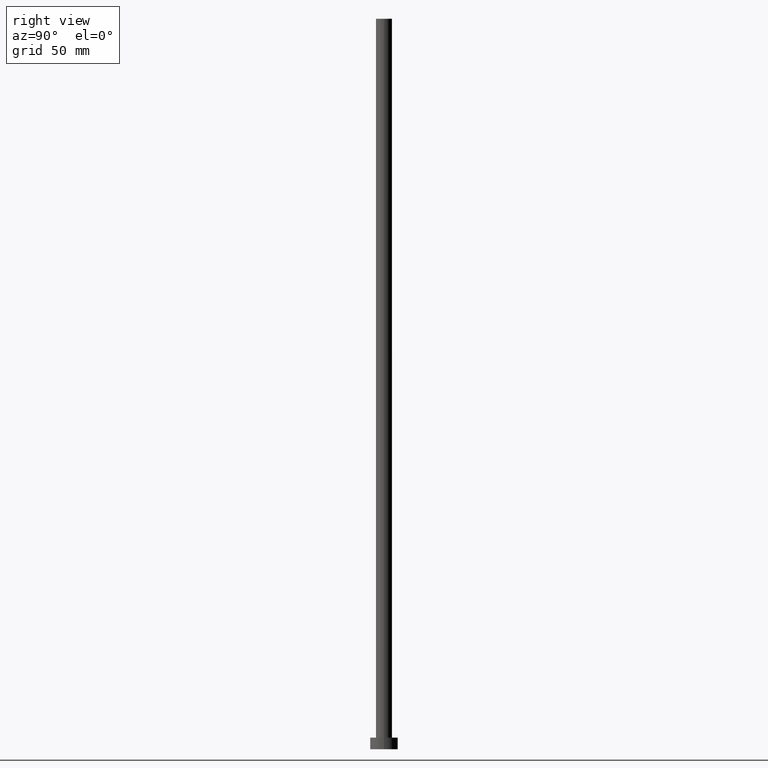
[diagram: clean part render]
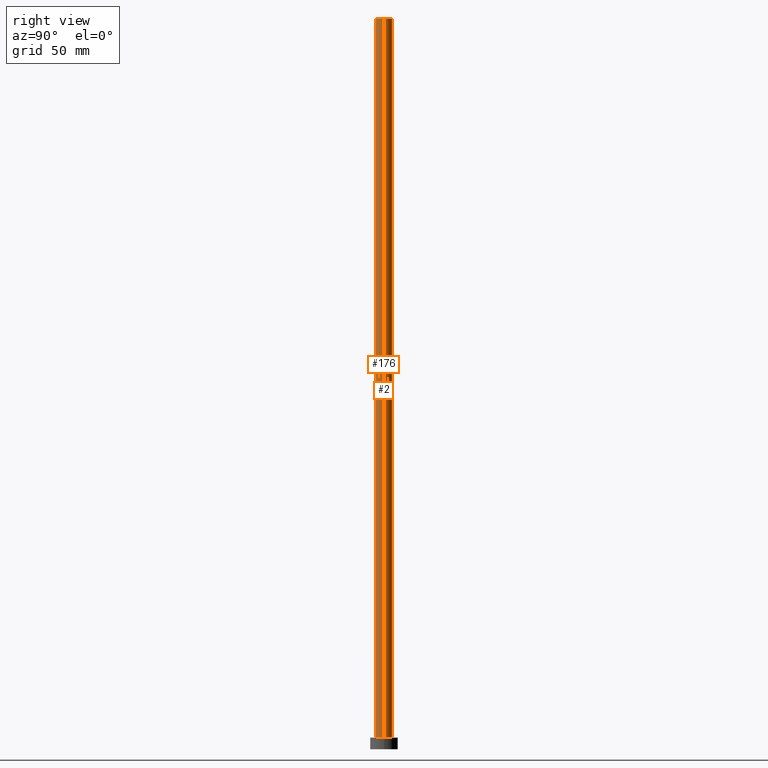
[diagram: same view with one multi-face feature highlighted, each face labeled with its STEP entity id]
A machine part, right view. The highlighted faces form ONE feature: a constant-radius fillet chain: 2 tangent blend faces with common blend radius 3.5 mm. The faces share edges in the B-rep.
Their STEP definitions:
[1] entity #2 (Cylinder):
#1 = DIRECTION ( 'NONE',  ( 0.000000000000000000, 0.000000000000000000, 1.000000000000000000 ) ) ;
#2 = ADVANCED_FACE ( 'NONE', ( #240 ), #137, .T. ) ;
#14 = CARTESIAN_POINT ( 'NONE',  ( 3.500000000000000000, 4.286263797015736595E-16, 315.0000000000000000 ) ) ;
#17 = ORIENTED_EDGE ( 'NONE', *, *, #232, .F. ) ;
#22 = DIRECTION ( 'NONE',  ( -1.000000000000000000, 0.000000000000000000, 0.000000000000000000 ) ) ;
#27 = ORIENTED_EDGE ( 'NONE', *, *, #172, .F. ) ;
#43 = CARTESIAN_POINT ( 'NONE',  ( 0.000000000000000000, 0.000000000000000000, 5.000000000000000000 ) ) ;
#45 = VERTEX_POINT ( 'NONE', #104 ) ;
#46 = DIRECTION ( 'NONE',  ( 1.000000000000000000, 0.000000000000000000, 0.000000000000000000 ) ) ;
#52 = CARTESIAN_POINT ( 'NONE',  ( 0.000000000000000000, 0.000000000000000000, 315.0000000000000000 ) ) ;
#91 = CIRCLE ( 'NONE', #162, 3.500000000000000000 ) ;
#101 = CARTESIAN_POINT ( 'NONE',  ( 3.500000000000000000, 4.286263797015736595E-16, 315.0000000000000000 ) ) ;
#104 = CARTESIAN_POINT ( 'NONE',  ( 3.500000000000000000, 4.286263797015736595E-16, 5.000000000000000000 ) ) ;
#114 = DIRECTION ( 'NONE',  ( -0.000000000000000000, -0.000000000000000000, -1.000000000000000000 ) ) ;
#116 = VERTEX_POINT ( 'NONE', #147 ) ;
#117 = ORIENTED_EDGE ( 'NONE', *, *, #170, .T. ) ;
#137 = CYLINDRICAL_SURFACE ( 'NONE', #228, 3.500000000000000000 ) ;
#144 = DIRECTION ( 'NONE',  ( 0.000000000000000000, 0.000000000000000000, 1.000000000000000000 ) ) ;
#147 = CARTESIAN_POINT ( 'NONE',  ( -3.500000000000000000, 0.000000000000000000, 5.000000000000000000 ) ) ;
#148 = EDGE_CURVE ( 'NONE', #173, #45, #227, .T. ) ;
#154 = DIRECTION ( 'NONE',  ( 1.000000000000000000, 0.000000000000000000, 0.000000000000000000 ) ) ;
#155 = AXIS2_PLACEMENT_3D ( 'NONE', #43, #144, #46 ) ;
#162 = AXIS2_PLACEMENT_3D ( 'NONE', #52, #1, #154 ) ;
#163 = CARTESIAN_POINT ( 'NONE',  ( -3.500000000000000000, 0.000000000000000000, 315.0000000000000000 ) ) ;
#170 = EDGE_CURVE ( 'NONE', #45, #116, #182, .T. ) ;
#171 = ORIENTED_EDGE ( 'NONE', *, *, #148, .T. ) ;
#172 = EDGE_CURVE ( 'NONE', #210, #116, #229, .T. ) ;
#173 = VERTEX_POINT ( 'NONE', #14 ) ;
#181 = CARTESIAN_POINT ( 'NONE',  ( -3.500000000000000000, 0.000000000000000000, 315.0000000000000000 ) ) ;
#182 = CIRCLE ( 'NONE', #155, 3.500000000000000000 ) ;
#185 = DIRECTION ( 'NONE',  ( -0.000000000000000000, -0.000000000000000000, -1.000000000000000000 ) ) ;
#206 = EDGE_LOOP ( 'NONE', ( #17, #171, #117, #27 ) ) ;
#209 = DIRECTION ( 'NONE',  ( -0.000000000000000000, -0.000000000000000000, -1.000000000000000000 ) ) ;
#210 = VERTEX_POINT ( 'NONE', #163 ) ;
#219 = CARTESIAN_POINT ( 'NONE',  ( 0.000000000000000000, 0.000000000000000000, 315.0000000000000000 ) ) ;
#222 = VECTOR ( 'NONE', #209, 1000.000000000000000 ) ;
#227 = LINE ( 'NONE', #101, #237 ) ;
#228 = AXIS2_PLACEMENT_3D ( 'NONE', #219, #114, #22 ) ;
#229 = LINE ( 'NONE', #181, #222 ) ;
#232 = EDGE_CURVE ( 'NONE', #173, #210, #91, .T. ) ;
#237 = VECTOR ( 'NONE', #185, 1000.000000000000000 ) ;
#240 = FACE_OUTER_BOUND ( 'NONE', #206, .T. ) ;
[2] entity #176 (Cylinder):
#14 = CARTESIAN_POINT ( 'NONE',  ( 3.500000000000000000, 4.286263797015736595E-16, 315.0000000000000000 ) ) ;
#21 = ORIENTED_EDGE ( 'NONE', *, *, #172, .T. ) ;
#28 = DIRECTION ( 'NONE',  ( 0.000000000000000000, 0.000000000000000000, 1.000000000000000000 ) ) ;
#35 = CARTESIAN_POINT ( 'NONE',  ( 0.000000000000000000, 0.000000000000000000, 315.0000000000000000 ) ) ;
#45 = VERTEX_POINT ( 'NONE', #104 ) ;
#98 = CYLINDRICAL_SURFACE ( 'NONE', #193, 3.500000000000000000 ) ;
#99 = EDGE_CURVE ( 'NONE', #210, #173, #251, .T. ) ;
#101 = CARTESIAN_POINT ( 'NONE',  ( 3.500000000000000000, 4.286263797015736595E-16, 315.0000000000000000 ) ) ;
#103 = ORIENTED_EDGE ( 'NONE', *, *, #216, .T. ) ;
#104 = CARTESIAN_POINT ( 'NONE',  ( 3.500000000000000000, 4.286263797015736595E-16, 5.000000000000000000 ) ) ;
#116 = VERTEX_POINT ( 'NONE', #147 ) ;
#120 = FACE_OUTER_BOUND ( 'NONE', #146, .T. ) ;
#122 = ORIENTED_EDGE ( 'NONE', *, *, #148, .F. ) ;
#126 = DIRECTION ( 'NONE',  ( 0.000000000000000000, 0.000000000000000000, 1.000000000000000000 ) ) ;
#141 = DIRECTION ( 'NONE',  ( -1.000000000000000000, 0.000000000000000000, 0.000000000000000000 ) ) ;
#146 = EDGE_LOOP ( 'NONE', ( #122, #195, #21, #103 ) ) ;
#147 = CARTESIAN_POINT ( 'NONE',  ( -3.500000000000000000, 0.000000000000000000, 5.000000000000000000 ) ) ;
#148 = EDGE_CURVE ( 'NONE', #173, #45, #227, .T. ) ;
#163 = CARTESIAN_POINT ( 'NONE',  ( -3.500000000000000000, 0.000000000000000000, 315.0000000000000000 ) ) ;
#168 = DIRECTION ( 'NONE',  ( 1.000000000000000000, 0.000000000000000000, 0.000000000000000000 ) ) ;
#172 = EDGE_CURVE ( 'NONE', #210, #116, #229, .T. ) ;
#173 = VERTEX_POINT ( 'NONE', #14 ) ;
#176 = ADVANCED_FACE ( 'NONE', ( #120 ), #98, .T. ) ;
#181 = CARTESIAN_POINT ( 'NONE',  ( -3.500000000000000000, 0.000000000000000000, 315.0000000000000000 ) ) ;
#183 = AXIS2_PLACEMENT_3D ( 'NONE', #201, #28, #168 ) ;
#185 = DIRECTION ( 'NONE',  ( -0.000000000000000000, -0.000000000000000000, -1.000000000000000000 ) ) ;
#188 = DIRECTION ( 'NONE',  ( -0.000000000000000000, -0.000000000000000000, -1.000000000000000000 ) ) ;
#193 = AXIS2_PLACEMENT_3D ( 'NONE', #35, #188, #141 ) ;
#195 = ORIENTED_EDGE ( 'NONE', *, *, #99, .F. ) ;
#199 = CIRCLE ( 'NONE', #183, 3.500000000000000000 ) ;
#201 = CARTESIAN_POINT ( 'NONE',  ( 0.000000000000000000, 0.000000000000000000, 5.000000000000000000 ) ) ;
#207 = DIRECTION ( 'NONE',  ( 1.000000000000000000, 0.000000000000000000, 0.000000000000000000 ) ) ;
#209 = DIRECTION ( 'NONE',  ( -0.000000000000000000, -0.000000000000000000, -1.000000000000000000 ) ) ;
#210 = VERTEX_POINT ( 'NONE', #163 ) ;
#211 = AXIS2_PLACEMENT_3D ( 'NONE', #252, #126, #207 ) ;
#216 = EDGE_CURVE ( 'NONE', #116, #45, #199, .T. ) ;
#222 = VECTOR ( 'NONE', #209, 1000.000000000000000 ) ;
#227 = LINE ( 'NONE', #101, #237 ) ;
#229 = LINE ( 'NONE', #181, #222 ) ;
#237 = VECTOR ( 'NONE', #185, 1000.000000000000000 ) ;
#251 = CIRCLE ( 'NONE', #211, 3.500000000000000000 ) ;
#252 = CARTESIAN_POINT ( 'NONE',  ( 0.000000000000000000, 0.000000000000000000, 315.0000000000000000 ) ) ;